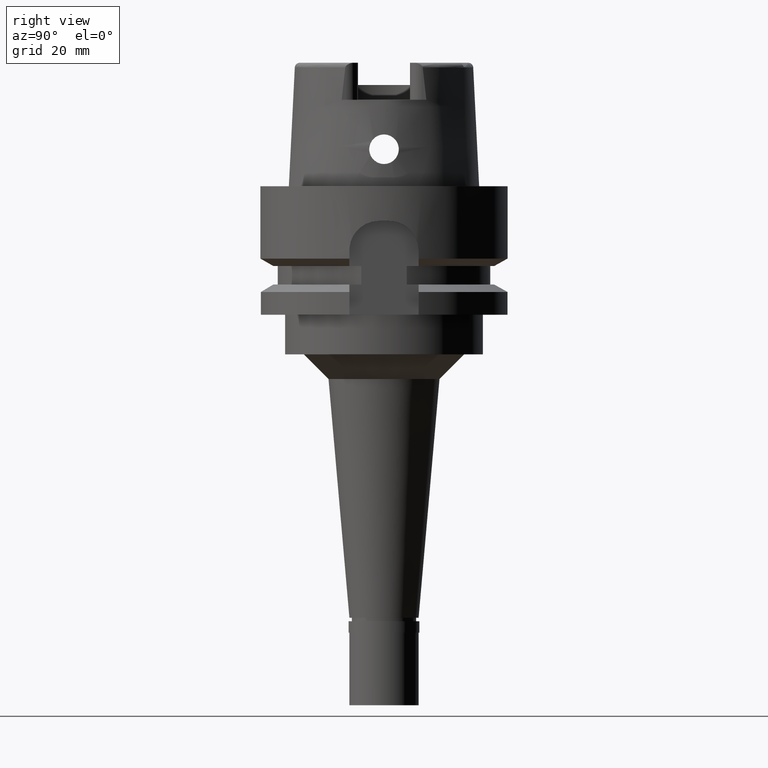
[diagram: clean part render]
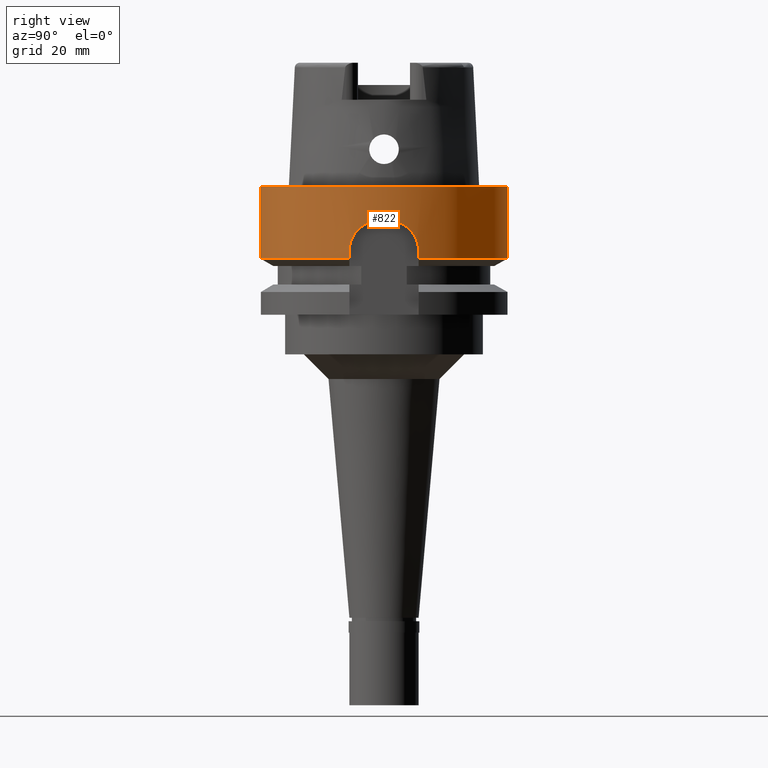
[diagram: same view with one face highlighted and labeled with its STEP entity id]
A machine part, right view. The second image highlights one B-rep face of the part: STEP entity #822.
In plain terms, the highlighted cylindrical surface (partial cylindrical patch) has radius 25 mm, axis along (0, 0, 1).
Its self-contained STEP definition (entity closure, byte-faithful):
#57 = AXIS2_PLACEMENT_3D ( 'NONE', #175, #292, #4796 ) ;
#78 = CARTESIAN_POINT ( 'NONE',  ( 24.12895328656718519, -6.542157197437520999, -10.70118825428794906 ) ) ;
#123 = DIRECTION ( 'NONE',  ( 0.0000000000000000000, 1.000000000000000000, 0.0000000000000000000 ) ) ;
#124 = CARTESIAN_POINT ( 'NONE',  ( 24.13499015407217030, -6.519858338395944308, -10.64803009887243235 ) ) ;
#175 = CARTESIAN_POINT ( 'NONE',  ( 0.0000000000000000000, 0.0000000000000000000, -14.62250092523999889 ) ) ;
#200 = CARTESIAN_POINT ( 'NONE',  ( 24.12068878588198118, 6.572602298854658187, -10.77595244454992951 ) ) ;
#202 = DIRECTION ( 'NONE',  ( 0.0000000000000000000, -2.721175632404000057E-14, -1.000000000000000000 ) ) ;
#228 = CARTESIAN_POINT ( 'NONE',  ( 24.39340954653099303, 5.474801672820500009, -9.002554744457148317 ) ) ;
#292 = DIRECTION ( 'NONE',  ( 0.0000000000000000000, 0.0000000000000000000, 1.000000000000000000 ) ) ;
#346 = CARTESIAN_POINT ( 'NONE',  ( 24.77466861490234606, 3.348472716428342988, -7.478687897359441727 ) ) ;
#354 = CARTESIAN_POINT ( 'NONE',  ( 24.50044862722415573, -4.972045920999911495, -8.502563083470462857 ) ) ;
#372 = CARTESIAN_POINT ( 'NONE',  ( 24.75999708075175221, 3.455767875550762369, -7.525262572092277225 ) ) ;
#398 = CARTESIAN_POINT ( 'NONE',  ( 24.77806068306341558, 3.323215476368208687, -7.468029299214332895 ) ) ;
#406 = CARTESIAN_POINT ( 'NONE',  ( 24.66234382425135507, -4.095064815627655008, -7.859639446861592660 ) ) ;
#460 = EDGE_CURVE ( 'NONE', #2081, #5135, #614, .T. ) ;
#484 = CARTESIAN_POINT ( 'NONE',  ( 24.45565233673521277, -5.188584022453540001, -8.703907517426278773 ) ) ;
#509 = CARTESIAN_POINT ( 'NONE',  ( 24.14842663895839436, -6.470323879029329817, -10.53481904888714560 ) ) ;
#511 = CARTESIAN_POINT ( 'NONE',  ( 24.00000000000000000, -7.000000000000000000, -13.00000000000000000 ) ) ;
#530 = CARTESIAN_POINT ( 'NONE',  ( 0.0000000000000000000, 0.0000000000000000000, 1.705302565823999875E-13 ) ) ;
#558 = DIRECTION ( 'NONE',  ( 0.0000000000000000000, 0.0000000000000000000, -1.000000000000000000 ) ) ;
#559 = CARTESIAN_POINT ( 'NONE',  ( 24.30529649372169487, -5.862537617070368690, -9.462845734418252164 ) ) ;
#573 = CARTESIAN_POINT ( 'NONE',  ( 0.0000000000000000000, 25.00000000000000000, 1.042129345780999972E-13 ) ) ;
#574 = CARTESIAN_POINT ( 'NONE',  ( 0.0000000000000000000, 0.0000000000000000000, -7.000000000000000000 ) ) ;
#612 = CARTESIAN_POINT ( 'NONE',  ( 0.0000000000000000000, 25.00000000000000000, -14.62250092523999889 ) ) ;
#614 = LINE ( 'NONE', #2258, #3429 ) ;
#670 = CARTESIAN_POINT ( 'NONE',  ( 24.11623053082026757, 6.589023799840533435, -10.81735361994883604 ) ) ;
#682 = VECTOR ( 'NONE', #4604, 999.9999999999998863 ) ;
#698 = CARTESIAN_POINT ( 'NONE',  ( 24.57381445942454690, 4.595186185082605235, -8.195383155925604513 ) ) ;
#734 = CARTESIAN_POINT ( 'NONE',  ( 24.69856182425139934, -3.871095718519373730, -7.730601826578062052 ) ) ;
#755 = CARTESIAN_POINT ( 'NONE',  ( 24.77859164082915200, 3.319248975570930682, -7.466363949573842085 ) ) ;
#756 = CIRCLE ( 'NONE', #4827, 25.00000000000000000 ) ;
#810 = CARTESIAN_POINT ( 'NONE',  ( 24.61482510379378752, 4.371564182606630489, -8.036877273556042311 ) ) ;
#821 = CARTESIAN_POINT ( 'NONE',  ( 24.79500069949363805, -3.194305551486070538, -7.415539722175416237 ) ) ;
#822 = ADVANCED_FACE ( 'NONE', ( #2148 ), #3830, .T. ) ;
#837 = CARTESIAN_POINT ( 'NONE',  ( 24.97999199359000144, 1.000000000000000000, -7.000000000000000000 ) ) ;
#896 = CARTESIAN_POINT ( 'NONE',  ( 24.13017009503742472, -6.537658886224360089, -10.69037778006270223 ) ) ;
#922 = CARTESIAN_POINT ( 'NONE',  ( 24.45126087971136286, -5.209238687517980360, -8.724207211699106068 ) ) ;
#954 = ORIENTED_EDGE ( 'NONE', *, *, #1819, .T. ) ;
#1005 = CARTESIAN_POINT ( 'NONE',  ( 24.30335086792931421, 5.866946322415557802, -9.484064445708847657 ) ) ;
#1014 = CIRCLE ( 'NONE', #57, 25.00000000000000000 ) ;
#1033 = CARTESIAN_POINT ( 'NONE',  ( 24.09097897415073319, 6.681486137997307395, -11.06647711579854665 ) ) ;
#1043 = DIRECTION ( 'NONE',  ( 0.0000000000000000000, 2.721175632404000057E-14, -1.000000000000000000 ) ) ;
#1053 = CARTESIAN_POINT ( 'NONE',  ( 24.36750995487468430, 5.590378506312792872, -9.134498803862786787 ) ) ;
#1082 = CARTESIAN_POINT ( 'NONE',  ( 24.43460421792967097, 5.286843905561766199, -8.802015659607182130 ) ) ;
#1093 = CARTESIAN_POINT ( 'NONE',  ( 0.0000000000000000000, -25.00000000000000000, -14.62250092523999889 ) ) ;
#1104 = CARTESIAN_POINT ( 'NONE',  ( 0.0000000000000000000, 0.0000000000000000000, -14.62250092523999889 ) ) ;
#1105 = CARTESIAN_POINT ( 'NONE',  ( 24.01043486441872332, 6.966396845524941206, -12.25702735781642971 ) ) ;
#1130 = CARTESIAN_POINT ( 'NONE',  ( 24.88364757978656883, 2.531959393008049730, -7.137416240265221923 ) ) ;
#1169 = CARTESIAN_POINT ( 'NONE',  ( 24.62355676823501938, -4.322103950328821220, -8.003638634458942747 ) ) ;
#1190 = CARTESIAN_POINT ( 'NONE',  ( 24.95050956833228284, 1.736470746995915526, -6.999999999999999112 ) ) ;
#1221 = CARTESIAN_POINT ( 'NONE',  ( 24.84296631258390420, -2.796227063561103510, -7.274294539717158337 ) ) ;
#1271 = CARTESIAN_POINT ( 'NONE',  ( 24.76274424008426323, -3.439636156582105642, -7.515612040122275239 ) ) ;
#1289 = DIRECTION ( 'NONE',  ( 0.0000000000000000000, 0.0000000000000000000, 1.000000000000000000 ) ) ;
#1296 = CARTESIAN_POINT ( 'NONE',  ( 24.44652763311151844, -5.231421486182836311, -8.746162543685066737 ) ) ;
#1342 = CARTESIAN_POINT ( 'NONE',  ( 24.13159849590247319, -6.532380329957347520, -10.67773505894463071 ) ) ;
#1474 = EDGE_LOOP ( 'NONE', ( #1672, #3479, #5344, #1842, #1882, #2537, #2544, #954, #4068, #2848 ) ) ;
#1494 = CARTESIAN_POINT ( 'NONE',  ( 24.43751223333802969, 5.273372890264033330, -8.788314004692750814 ) ) ;
#1539 = VERTEX_POINT ( 'NONE', #4544 ) ;
#1560 = CARTESIAN_POINT ( 'NONE',  ( 24.94185023557807312, -1.739811273216882226, -7.033056774451383220 ) ) ;
#1583 = CARTESIAN_POINT ( 'NONE',  ( 24.76985465268533915, 3.384020467831146739, -7.493884706693804354 ) ) ;
#1622 = AXIS2_PLACEMENT_3D ( 'NONE', #4662, #1289, #2940 ) ;
#1638 = CARTESIAN_POINT ( 'NONE',  ( 24.61663889586561638, 4.361362984928307540, -8.029965883656151604 ) ) ;
#1648 = CARTESIAN_POINT ( 'NONE',  ( 24.54654578034640267, -4.738676858237052869, -8.306173813937649086 ) ) ;
#1657 = EDGE_CURVE ( 'NONE', #1855, #5356, #4645, .T. ) ;
#1672 = ORIENTED_EDGE ( 'NONE', *, *, #3547, .T. ) ;
#1734 = CARTESIAN_POINT ( 'NONE',  ( 24.00000000000000711, -7.000000000000000888, -12.25954671727395962 ) ) ;
#1819 = EDGE_CURVE ( 'NONE', #5135, #5356, #1014, .T. ) ;
#1842 = ORIENTED_EDGE ( 'NONE', *, *, #3225, .T. ) ;
#1855 = VERTEX_POINT ( 'NONE', #2431 ) ;
#1857 = CARTESIAN_POINT ( 'NONE',  ( 24.12475253472292991, 6.557610589586692740, -10.73880887821202634 ) ) ;
#1882 = ORIENTED_EDGE ( 'NONE', *, *, #2184, .F. ) ;
#1884 = CARTESIAN_POINT ( 'NONE',  ( 24.40662219008083511, 5.415271313915957840, -8.936539479595460023 ) ) ;
#1934 = CARTESIAN_POINT ( 'NONE',  ( 24.58607127573512940, 4.529312724062060092, -8.147360615192202005 ) ) ;
#1940 = DIRECTION ( 'NONE',  ( 0.9991996797437435740, -0.04000000000000173556, 0.0000000000000000000 ) ) ;
#1993 = CARTESIAN_POINT ( 'NONE',  ( 24.61244496266746751, 4.384881169835549208, -8.045937147539264700 ) ) ;
#2000 = CARTESIAN_POINT ( 'NONE',  ( 24.59105343039106373, -4.504464817335319005, -8.125827043981045605 ) ) ;
#2055 = CARTESIAN_POINT ( 'NONE',  ( 24.62689539533859673, -4.303048270510348772, -7.991012587992667449 ) ) ;
#2078 = CARTESIAN_POINT ( 'NONE',  ( 24.97999199359000144, -1.000000000000000000, -7.000000000000000000 ) ) ;
#2081 = VERTEX_POINT ( 'NONE', #5171 ) ;
#2133 = CARTESIAN_POINT ( 'NONE',  ( 24.47402225888114558, -5.100991898965991922, -8.620144381887895335 ) ) ;
#2148 = FACE_OUTER_BOUND ( 'NONE', #1474, .T. ) ;
#2154 = CARTESIAN_POINT ( 'NONE',  ( 24.04276171160777409, -6.861034943952843967, -11.47231202773890502 ) ) ;
#2183 = VERTEX_POINT ( 'NONE', #2526 ) ;
#2184 = EDGE_CURVE ( 'NONE', #1539, #3200, #4309, .T. ) ;
#2258 = CARTESIAN_POINT ( 'NONE',  ( 0.0000000000000000000, -25.00000000000000000, 1.042129345780999972E-13 ) ) ;
#2308 = CARTESIAN_POINT ( 'NONE',  ( 24.42249692440192987, 5.342680383513521036, -8.859619721647055357 ) ) ;
#2334 = CARTESIAN_POINT ( 'NONE',  ( 24.52925373193718883, 4.828896974606034398, -8.376324529885163628 ) ) ;
#2374 = CARTESIAN_POINT ( 'NONE',  ( 24.65101416014191571, -4.163011647342020005, -7.900938413527500259 ) ) ;
#2400 = CARTESIAN_POINT ( 'NONE',  ( 24.67948136267530401, 3.993933429178719408, -7.796559781910257669 ) ) ;
#2408 = CARTESIAN_POINT ( 'NONE',  ( 24.79031921562474849, -3.230405450082696639, -7.429949754986200361 ) ) ;
#2431 = CARTESIAN_POINT ( 'NONE',  ( 24.00000000000000000, -7.000000000000000000, -13.00000000000000000 ) ) ;
#2452 = CARTESIAN_POINT ( 'NONE',  ( 24.61590866664232635, 4.365476426445892066, -8.032749694574462751 ) ) ;
#2462 = CARTESIAN_POINT ( 'NONE',  ( 24.73872199058456900, -3.608709072215195768, -7.593186898329763679 ) ) ;
#2486 = CARTESIAN_POINT ( 'NONE',  ( 24.87425935198268689, -2.506584891835525575, -7.188740180406544056 ) ) ;
#2510 = CARTESIAN_POINT ( 'NONE',  ( 24.49021585906513820, -5.022524554324199642, -8.547542771296930297 ) ) ;
#2526 = CARTESIAN_POINT ( 'NONE',  ( 23.99999968308999954, 7.000001086560000196, -14.62249198714999920 ) ) ;
#2537 = ORIENTED_EDGE ( 'NONE', *, *, #3049, .T. ) ;
#2544 = ORIENTED_EDGE ( 'NONE', *, *, #460, .T. ) ;
#2564 = CARTESIAN_POINT ( 'NONE',  ( 24.46571434680278045, -5.140911880696820369, -8.657728510755893225 ) ) ;
#2569 = DIRECTION ( 'NONE',  ( 3.909718843108922909E-08, 1.340466342138973176E-07, -0.9999999999999903411 ) ) ;
#2618 = CARTESIAN_POINT ( 'NONE',  ( 24.44831564902993648, -5.223056861832116482, -8.737854409019243818 ) ) ;
#2670 = CARTESIAN_POINT ( 'NONE',  ( 24.10752801693979919, 6.620997961996786252, -10.90026572784741532 ) ) ;
#2694 = CARTESIAN_POINT ( 'NONE',  ( 24.05478303819830188, 6.811724703851271379, -11.49554198203151145 ) ) ;
#2727 = CARTESIAN_POINT ( 'NONE',  ( 24.00000006344000170, -6.999999782508999679, -14.62250271429000037 ) ) ;
#2747 = CARTESIAN_POINT ( 'NONE',  ( 24.48915954220483471, 5.033751715401346694, -8.545801109922820160 ) ) ;
#2826 = VECTOR ( 'NONE', #1043, 1000.000000000000000 ) ;
#2848 = ORIENTED_EDGE ( 'NONE', *, *, #3793, .F. ) ;
#2857 = VERTEX_POINT ( 'NONE', #4516 ) ;
#2867 = CARTESIAN_POINT ( 'NONE',  ( 24.82647029887729673, -2.941155774236141163, -7.321066971522967926 ) ) ;
#2911 = AXIS2_PLACEMENT_3D ( 'NONE', #574, #4703, #1940 ) ;
#2940 = DIRECTION ( 'NONE',  ( 0.0000000000000000000, 1.000000000000000000, 0.0000000000000000000 ) ) ;
#2946 = CARTESIAN_POINT ( 'NONE',  ( 24.36959338862715185, -5.590577579862930691, -9.104356581042097218 ) ) ;
#2978 = CARTESIAN_POINT ( 'NONE',  ( 24.20247363200047985, -6.268711443724201082, -10.12424634690281167 ) ) ;
#3049 = EDGE_CURVE ( 'NONE', #1539, #2081, #3724, .T. ) ;
#3057 = CARTESIAN_POINT ( 'NONE',  ( 24.12262239479160897, 6.565471226270903848, -10.75822154438714939 ) ) ;
#3091 = AXIS2_PLACEMENT_3D ( 'NONE', #530, #558, #123 ) ;
#3200 = VERTEX_POINT ( 'NONE', #612 ) ;
#3213 = CARTESIAN_POINT ( 'NONE',  ( 24.72010256357657099, 3.730999542882984965, -7.656639786878499443 ) ) ;
#3223 = CARTESIAN_POINT ( 'NONE',  ( 24.62438257765256466, -4.317398151292299424, -8.000511889825460798 ) ) ;
#3225 = EDGE_CURVE ( 'NONE', #2183, #3200, #756, .T. ) ;
#3254 = CARTESIAN_POINT ( 'NONE',  ( 24.89285606089596570, -2.313787954310059014, -7.142364448402869215 ) ) ;
#3303 = CARTESIAN_POINT ( 'NONE',  ( 24.73294308578318379, 3.644859767068727496, -7.613589877102335812 ) ) ;
#3346 = CARTESIAN_POINT ( 'NONE',  ( 24.78718052858701171, -3.254464450700061739, -7.439644054175438725 ) ) ;
#3429 = VECTOR ( 'NONE', #202, 1000.000000000000000 ) ;
#3441 = B_SPLINE_CURVE_WITH_KNOTS ( 'NONE', 3,
 ( #3555, #5157, #1105, #4014, #2694, #4740, #1033, #2670, #670, #200, #3057, #3963, #1857, #3990, #5210, #5187, #1005, #4766, #1053, #228, #1884, #2308, #4793, #1082, #5237, #1494, #4819, #2747, #2334, #698, #1934, #3614, #5263, #4718, #1993, #810, #2452, #3673, #1638, #4070, #3755, #4126, #2400, #3213, #3303, #5319, #372, #1583, #346, #4042, #398, #755, #1130, #1190, #837 ),
 .UNSPECIFIED., .F., .F.,
 ( 4, 2, 2, 1, 1, 1, 1, 2, 2, 2, 2, 2, 1, 1, 1, 1, 2, 2, 2, 2, 2, 1, 1, 1, 1, 2, 2, 2, 2, 1, 1, 1, 2, 2, 4 ),
 ( 0.0000000000000000000, 0.1250000000000373312, 0.1875000000000562883, 0.2187500000000655309, 0.2343750000000698885, 0.2421875000000718869, 0.2460937500000730804, 0.2480468750000734690, 0.2500000000000738298, 0.3750000000001150746, 0.4375000000001352807, 0.4687500000001455502, 0.4843750000001506018, 0.4921875000001533773, 0.4960937500001545986, 0.4980468750001552092, 0.4990234375001556533, 0.5000000000001559863, 0.5625000000001769696, 0.5937500000001872946, 0.6093750000001925127, 0.6171875000001953993, 0.6210937500001970646, 0.6230468750001973977, 0.6240234375001976197, 0.6245117187501972866, 0.6250000000001969536, 0.6875000000001683098, 0.7187500000001538769, 0.7343750000001466605, 0.7421875000001431077, 0.7460937500001412204, 0.7480468750001402212, 0.7500000000001392220, 1.000000000000000000 ),
 .UNSPECIFIED. ) ;
#3466 = CARTESIAN_POINT ( 'NONE',  ( 24.97999199359000144, 1.000000000000000000, -7.000000000000000000 ) ) ;
#3479 = ORIENTED_EDGE ( 'NONE', *, *, #4025, .F. ) ;
#3547 = EDGE_CURVE ( 'NONE', #2857, #4925, #4317, .T. ) ;
#3555 = CARTESIAN_POINT ( 'NONE',  ( 24.00000000000000000, 7.000000000000000000, -13.00000000000000000 ) ) ;
#3582 = DIRECTION ( 'NONE',  ( 0.0000000000000000000, 0.0000000000000000000, 1.000000000000000000 ) ) ;
#3614 = CARTESIAN_POINT ( 'NONE',  ( 24.60056136092321566, 4.450489383073262140, -8.091317657140333353 ) ) ;
#3654 = CARTESIAN_POINT ( 'NONE',  ( 24.63734485079677938, -4.242896415469655125, -7.951740609938561910 ) ) ;
#3673 = CARTESIAN_POINT ( 'NONE',  ( 24.61642382113792493, 4.362575545554039813, -8.030786039304269153 ) ) ;
#3720 = VECTOR ( 'NONE', #2569, 999.9999999999998863 ) ;
#3724 = CIRCLE ( 'NONE', #3091, 25.00000000000000000 ) ;
#3741 = CARTESIAN_POINT ( 'NONE',  ( 24.62538851074106816, -4.311657320443725183, -7.996707319182131180 ) ) ;
#3755 = CARTESIAN_POINT ( 'NONE',  ( 24.61666591321221276, 4.361211313611440765, -8.029863026927946734 ) ) ;
#3764 = CARTESIAN_POINT ( 'NONE',  ( 24.80573833504029579, -3.109999917858498275, -7.382833471989793672 ) ) ;
#3793 = EDGE_CURVE ( 'NONE', #2857, #1855, #4867, .T. ) ;
#3817 = CARTESIAN_POINT ( 'NONE',  ( 24.14200836168321374, -6.493980026904404568, -10.58780674279389800 ) ) ;
#3830 = CYLINDRICAL_SURFACE ( 'NONE', #1622, 25.00000000000000000 ) ;
#3835 = CARTESIAN_POINT ( 'NONE',  ( 24.00000000000000000, -7.000000000000000000, -13.00000000000000000 ) ) ;
#3897 = VERTEX_POINT ( 'NONE', #5031 ) ;
#3963 = CARTESIAN_POINT ( 'NONE',  ( 24.12391656254666117, 6.560696426165574913, -10.74640379159693460 ) ) ;
#3990 = CARTESIAN_POINT ( 'NONE',  ( 24.15503202433642826, 6.445803977048007560, -10.46460447778411584 ) ) ;
#4013 = DIRECTION ( 'NONE',  ( 0.9599999999999999645, 0.2800000000000000266, 0.0000000000000000000 ) ) ;
#4014 = CARTESIAN_POINT ( 'NONE',  ( 24.04173945767489329, 6.857670578383050497, -11.68654261147291251 ) ) ;
#4025 = EDGE_CURVE ( 'NONE', #3897, #4925, #3441, .T. ) ;
#4042 = CARTESIAN_POINT ( 'NONE',  ( 24.77670713647755107, 3.333308852736893702, -7.472278970341624138 ) ) ;
#4068 = ORIENTED_EDGE ( 'NONE', *, *, #1657, .F. ) ;
#4070 = CARTESIAN_POINT ( 'NONE',  ( 24.61678101106844352, 4.360561431063889160, -8.029423866178719393 ) ) ;
#4076 = CARTESIAN_POINT ( 'NONE',  ( 24.52945803581025430, -4.826938753372482793, -8.377133979367894057 ) ) ;
#4126 = CARTESIAN_POINT ( 'NONE',  ( 24.64960104969917154, 4.175295883880205672, -7.904210411144044102 ) ) ;
#4135 = CARTESIAN_POINT ( 'NONE',  ( 24.68448730345974695, -3.960010261698572620, -7.779916612981188528 ) ) ;
#4188 = CARTESIAN_POINT ( 'NONE',  ( 24.12922342044338109, -6.541158518180693271, -10.69878662106242828 ) ) ;
#4197 = CARTESIAN_POINT ( 'NONE',  ( 23.99999968308999954, 7.000001086560000196, -14.62249198714999920 ) ) ;
#4244 = CARTESIAN_POINT ( 'NONE',  ( 24.22603177008997832, -6.178584438497486175, -9.963357724831823248 ) ) ;
#4309 = LINE ( 'NONE', #573, #2826 ) ;
#4317 = CIRCLE ( 'NONE', #2911, 25.00000000000001066 ) ;
#4516 = CARTESIAN_POINT ( 'NONE',  ( 24.97999199359000144, -1.000000000000000000, -7.000000000000000000 ) ) ;
#4544 = CARTESIAN_POINT ( 'NONE',  ( 0.0000000000000000000, 25.00000000000000000, 1.042129345780999972E-13 ) ) ;
#4596 = CARTESIAN_POINT ( 'NONE',  ( 24.16180008784389344, -6.420924016830910297, -10.42709800874995274 ) ) ;
#4604 = DIRECTION ( 'NONE',  ( 1.953248206043914318E-07, -6.696857963885707065E-07, 0.9999999999997567501 ) ) ;
#4619 = CARTESIAN_POINT ( 'NONE',  ( 24.17143157954784627, -6.385208071025729737, -10.35295374626880438 ) ) ;
#4645 = LINE ( 'NONE', #511, #3720 ) ;
#4662 = CARTESIAN_POINT ( 'NONE',  ( 0.0000000000000000000, 0.0000000000000000000, -107.3000000000000114 ) ) ;
#4703 = DIRECTION ( 'NONE',  ( 0.0000000000000000000, 0.0000000000000000000, 1.000000000000000000 ) ) ;
#4718 = CARTESIAN_POINT ( 'NONE',  ( 24.61003967239476253, 4.398243529745505143, -8.055095384397928271 ) ) ;
#4740 = CARTESIAN_POINT ( 'NONE',  ( 24.07826148314042669, 6.727455741475575124, -11.20943159311499926 ) ) ;
#4766 = CARTESIAN_POINT ( 'NONE',  ( 24.35094448769496722, 5.662783105303809350, -9.222342518875736417 ) ) ;
#4793 = CARTESIAN_POINT ( 'NONE',  ( 24.43054928744072640, 5.305589509806039494, -8.821207196576040133 ) ) ;
#4796 = DIRECTION ( 'NONE',  ( 0.0000000000000000000, -1.000000000000000000, 0.0000000000000000000 ) ) ;
#4819 = CARTESIAN_POINT ( 'NONE',  ( 24.43788954521385293, 5.271623935337001576, -8.786538707358205968 ) ) ;
#4827 = AXIS2_PLACEMENT_3D ( 'NONE', #1104, #3582, #4013 ) ;
#4867 = B_SPLINE_CURVE_WITH_KNOTS ( 'NONE', 3,
 ( #2078, #4948, #1560, #3254, #2486, #1221, #2867, #3764, #821, #2408, #3346, #5000, #1271, #2462, #734, #4135, #406, #2374, #3654, #5298, #2055, #3741, #3223, #1169, #5385, #2000, #1648, #4076, #354, #2510, #2133, #2564, #484, #922, #2618, #1296, #2946, #559, #4244, #2978, #4619, #4596, #509, #3817, #124, #1342, #896, #4188, #78, #2154, #1734, #3835 ),
 .UNSPECIFIED., .F., .F.,
 ( 4, 2, 2, 1, 1, 1, 2, 2, 2, 2, 1, 1, 1, 1, 2, 2, 2, 2, 2, 1, 1, 2, 2, 2, 2, 2, 1, 1, 1, 2, 2, 4 ),
 ( 0.0000000000000000000, 0.1249999999999536759, 0.1874999999999304723, 0.2187499999999188982, 0.2343749999999131528, 0.2421874999999102385, 0.2460937499999087397, 0.2499999999999072409, 0.3124999999998818168, 0.3437499999998691047, 0.3593749999998627209, 0.3671874999998594458, 0.3710937499998577804, 0.3730468749998570588, 0.3740234374998567812, 0.3749999999998565592, 0.4374999999998631095, 0.4687499999998666067, 0.4843749999998682165, 0.4921874999998690492, 0.4960937499998694933, 0.4980468749998698264, 0.4999999999998702149, 0.6249999999999065192, 0.6874999999999246159, 0.7187499999999339417, 0.7343749999999386047, 0.7421874999999409361, 0.7460937499999417133, 0.7480468749999421574, 0.7499999999999426015, 1.000000000000000000 ),
 .UNSPECIFIED. ) ;
#4925 = VERTEX_POINT ( 'NONE', #3466 ) ;
#4948 = CARTESIAN_POINT ( 'NONE',  ( 24.96545174928919764, -1.363215186202682006, -7.000000000000001776 ) ) ;
#4952 = LINE ( 'NONE', #4197, #682 ) ;
#5000 = CARTESIAN_POINT ( 'NONE',  ( 24.78534473578512731, -3.268441429235474871, -7.445336015416951447 ) ) ;
#5031 = CARTESIAN_POINT ( 'NONE',  ( 24.00000000000000000, 7.000000000000000000, -13.00000000000000000 ) ) ;
#5135 = VERTEX_POINT ( 'NONE', #1093 ) ;
#5157 = CARTESIAN_POINT ( 'NONE',  ( 23.99999999999999645, 7.000000000000001776, -12.63385984741053214 ) ) ;
#5171 = CARTESIAN_POINT ( 'NONE',  ( 0.0000000000000000000, -25.00000000000000000, 1.705302565823999875E-13 ) ) ;
#5187 = CARTESIAN_POINT ( 'NONE',  ( 24.27442549711686226, 5.985645042895621160, -9.656079087926745075 ) ) ;
#5210 = CARTESIAN_POINT ( 'NONE',  ( 24.19606051177344597, 6.297238694370087764, -10.15515967852845414 ) ) ;
#5225 = EDGE_CURVE ( 'NONE', #2183, #3897, #4952, .T. ) ;
#5237 = CARTESIAN_POINT ( 'NONE',  ( 24.43634820577556255, 5.278767043176969764, -8.793794183289003641 ) ) ;
#5263 = CARTESIAN_POINT ( 'NONE',  ( 24.60474219943960605, 4.427535728193080722, -8.075310993433259199 ) ) ;
#5298 = CARTESIAN_POINT ( 'NONE',  ( 24.63039735415316756, -4.282976120889375515, -7.977809557324074596 ) ) ;
#5319 = CARTESIAN_POINT ( 'NONE',  ( 24.75115405195235496, 3.518349372221604821, -7.553892147660921985 ) ) ;
#5344 = ORIENTED_EDGE ( 'NONE', *, *, #5225, .F. ) ;
#5356 = VERTEX_POINT ( 'NONE', #2727 ) ;
#5385 = CARTESIAN_POINT ( 'NONE',  ( 24.61171775233580306, -4.389522976333728899, -8.048486047853044667 ) ) ;